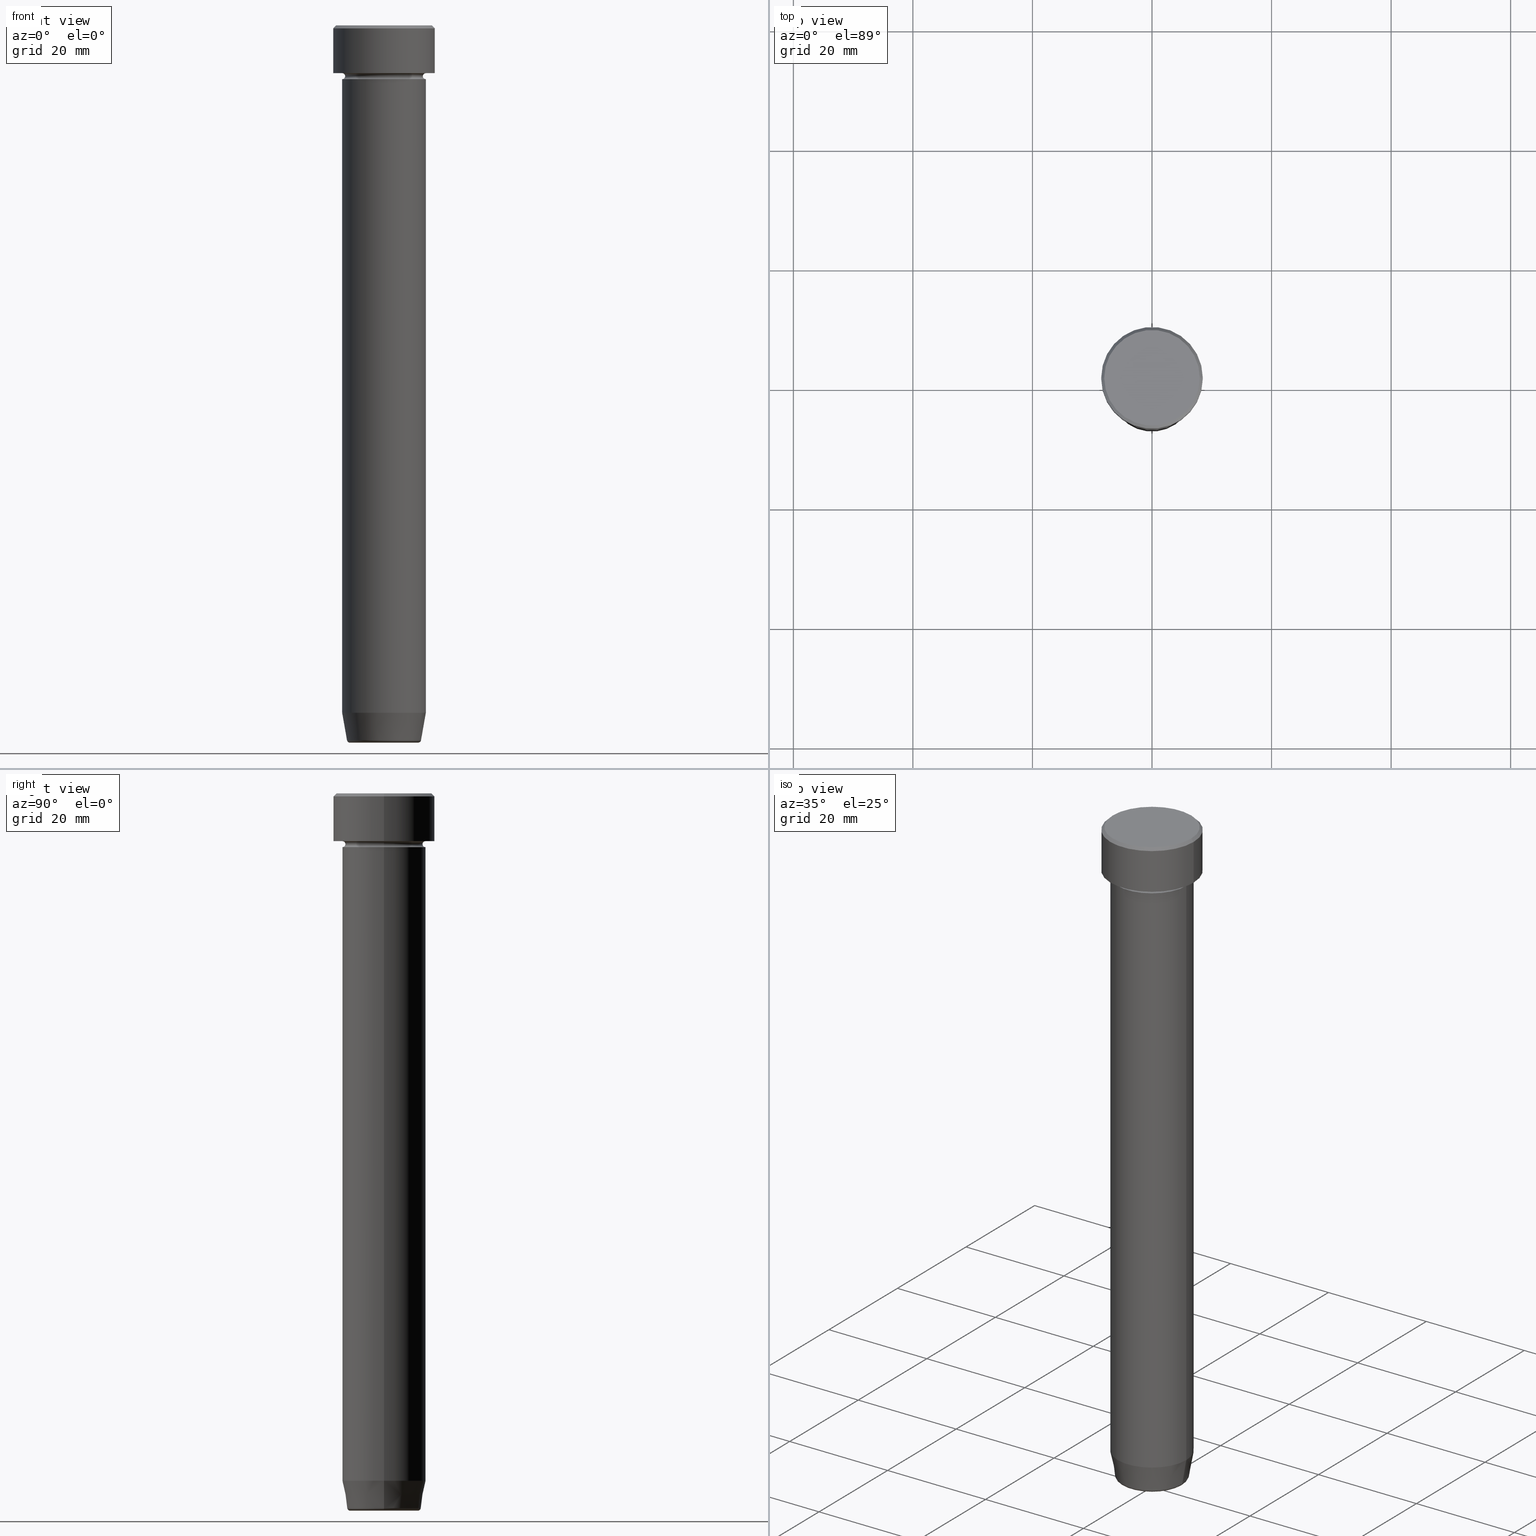
[diagram: canonical four-view strip — front | top / right | iso, engineering-drawing reading convention]
A machine part, canonical four-view strip (front | top / right | iso — engineering-drawing reading convention). The complete STEP part file that produces these views, byte-faithful:
ISO-10303-21;
HEADER;
FILE_DESCRIPTION (( 'STEP AP203' ),
    '1' );
FILE_NAME ('e0a8.STEP',
    '2024-01-02T23:19:42',
    ( '' ),
    ( '' ),
    'SwSTEP 2.0',
    'SolidWorks 2019',
    '' );
FILE_SCHEMA (( 'CONFIG_CONTROL_DESIGN' ));
ENDSEC;

DATA;
#1 = EDGE_LOOP ( 'NONE', ( #250, #313, #214, #512 ) ) ;
#2 = DIRECTION ( 'NONE',  ( -1.000000000000000000, 1.224646799147351482E-16, 0.000000000000000000 ) ) ;
#3 = COORDINATED_UNIVERSAL_TIME_OFFSET ( 1, 0, .AHEAD. ) ;
#4 = CIRCLE ( 'NONE', #506, 8.000000000000000000 ) ;
#5 = LOCAL_TIME ( 0, 19, 42.00000000000000000, #41 ) ;
#6 = DIRECTION ( 'NONE',  ( 1.000000000000000000, 0.000000000000000000, 0.000000000000000000 ) ) ;
#7 = CARTESIAN_POINT ( 'NONE',  ( 0.000000000000000000, 0.000000000000000000, -8.500000000000000000 ) ) ;
#8 = DATE_AND_TIME ( #365, #110 ) ;
#9 = ADVANCED_FACE ( 'NONE', ( #226 ), #55, .T. ) ;
#10 = CARTESIAN_POINT ( 'NONE',  ( -6.999999999999999112, 8.572527594031472204E-16, -22.00000000000000000 ) ) ;
#11 = DIRECTION ( 'NONE',  ( -0.000000000000000000, -0.000000000000000000, 1.000000000000000000 ) ) ;
#12 = DIRECTION ( 'NONE',  ( -0.000000000000000000, -0.000000000000000000, 1.000000000000000000 ) ) ;
#13 = VECTOR ( 'NONE', #573, 1000.000000000000000 ) ;
#14 = CARTESIAN_POINT ( 'NONE',  ( 0.000000000000000000, 0.000000000000000000, 0.000000000000000000 ) ) ;
#15 = CIRCLE ( 'NONE', #481, 7.000000000000000000 ) ;
#16 = CARTESIAN_POINT ( 'NONE',  ( -6.999999999999999112, 8.572527594031472204E-16, -114.9999999999999858 ) ) ;
#17 = LINE ( 'NONE', #379, #99 ) ;
#18 = EDGE_LOOP ( 'NONE', ( #390, #477, #402, #170 ) ) ;
#19 = CARTESIAN_POINT ( 'NONE',  ( 0.000000000000000000, 0.000000000000000000, -120.0000000000000000 ) ) ;
#20 = CARTESIAN_POINT ( 'NONE',  ( 0.000000000000000000, 0.000000000000000000, 0.000000000000000000 ) ) ;
#21 = EDGE_LOOP ( 'NONE', ( #261, #74 ) ) ;
#22 = FACE_OUTER_BOUND ( 'NONE', #80, .T. ) ;
#23 = CARTESIAN_POINT ( 'NONE',  ( 6.999999999999999112, 0.000000000000000000, 0.000000000000000000 ) ) ;
#24 = AXIS2_PLACEMENT_3D ( 'NONE', #7, #228, #415 ) ;
#25 = MANIFOLD_SOLID_BREP ( 'Zkosen�1', #65 ) ;
#26 = ADVANCED_FACE ( 'NONE', ( #323 ), #50, .T. ) ;
#27 = EDGE_LOOP ( 'NONE', ( #532, #504, #547, #595 ) ) ;
#28 = EDGE_CURVE ( 'NONE', #440, #544, #232, .T. ) ;
#29 = DATE_AND_TIME ( #394, #549 ) ;
#30 = CARTESIAN_POINT ( 'NONE',  ( 0.000000000000000000, 0.000000000000000000, -8.500000000000000000 ) ) ;
#31 = ORIENTED_EDGE ( 'NONE', *, *, #89, .T. ) ;
#32 = VECTOR ( 'NONE', #300, 999.9999999999998863 ) ;
#33 = CONICAL_SURFACE ( 'NONE', #391, 6.118365096457675456, 0.1745329251994325315 ) ;
#34 = DIRECTION ( 'NONE',  ( -0.000000000000000000, -0.000000000000000000, 1.000000000000000000 ) ) ;
#35 = VERTEX_POINT ( 'NONE', #280 ) ;
#36 = APPLICATION_PROTOCOL_DEFINITION ( 'international standard', 'config_control_design', 1994, #102 ) ;
#37 = CC_DESIGN_PERSON_AND_ORGANIZATION_ASSIGNMENT ( #374, #221, ( #592 ) ) ;
#38 = PLANE ( 'NONE',  #119 ) ;
#39 = VERTEX_POINT ( 'NONE', #236 ) ;
#40 =( LENGTH_UNIT ( ) NAMED_UNIT ( * ) SI_UNIT ( .MILLI., .METRE. ) );
#41 = COORDINATED_UNIVERSAL_TIME_OFFSET ( 1, 0, .AHEAD. ) ;
#42 = CIRCLE ( 'NONE', #91, 8.500000000000000000 ) ;
#43 = AXIS2_PLACEMENT_3D ( 'NONE', #244, #183, #290 ) ;
#44 = CARTESIAN_POINT ( 'NONE',  ( 0.000000000000000000, 0.000000000000000000, -22.00000000000000000 ) ) ;
#45 = AXIS2_PLACEMENT_3D ( 'NONE', #175, #213, #584 ) ;
#46 = EDGE_CURVE ( 'NONE', #355, #371, #253, .T. ) ;
#47 = EDGE_LOOP ( 'NONE', ( #122, #279, #461, #176 ) ) ;
#48 = CC_DESIGN_PERSON_AND_ORGANIZATION_ASSIGNMENT ( #160, #537, ( #380 ) ) ;
#49 = VERTEX_POINT ( 'NONE', #524 ) ;
#50 = CYLINDRICAL_SURFACE ( 'NONE', #43, 8.500000000000000000 ) ;
#51 = VERTEX_POINT ( 'NONE', #465 ) ;
#52 = CARTESIAN_POINT ( 'NONE',  ( 7.000000000000000888, 0.000000000000000000, -8.500000000000000000 ) ) ;
#53 = VERTEX_POINT ( 'NONE', #142 ) ;
#54 = DIRECTION ( 'NONE',  ( -0.7071067811865487940, 0.000000000000000000, -0.7071067811865463515 ) ) ;
#55 = CONICAL_SURFACE ( 'NONE', #295, 6.118365096457675456, 0.1745329251994325315 ) ;
#56 = LINE ( 'NONE', #479, #243 ) ;
#57 = DIRECTION ( 'NONE',  ( 1.000000000000000000, 0.000000000000000000, 0.000000000000000000 ) ) ;
#58 = CYLINDRICAL_SURFACE ( 'NONE', #582, 6.999999999999999112 ) ;
#59 = CARTESIAN_POINT ( 'NONE',  ( 0.000000000000000000, 0.000000000000000000, 0.000000000000000000 ) ) ;
#60 = DIRECTION ( 'NONE',  ( -0.000000000000000000, -0.000000000000000000, 1.000000000000000000 ) ) ;
#61 = AXIS2_PLACEMENT_3D ( 'NONE', #483, #531, #289 ) ;
#62 = DIRECTION ( 'NONE',  ( 0.000000000000000000, -0.000000000000000000, 1.000000000000000000 ) ) ;
#63 = SECURITY_CLASSIFICATION ( '', '', #270 ) ;
#64 = VERTEX_POINT ( 'NONE', #10 ) ;
#65 = CLOSED_SHELL ( 'NONE', ( #500, #577, #474, #87, #130, #302, #129, #26, #303, #105, #237, #321, #366 ) ) ;
#66 = AXIS2_PLACEMENT_3D ( 'NONE', #312, #358, #496 ) ;
#67 = DIRECTION ( 'NONE',  ( 1.000000000000000000, 0.000000000000000000, 0.000000000000000000 ) ) ;
#68 = CARTESIAN_POINT ( 'NONE',  ( 0.000000000000000000, 0.000000000000000000, -119.5000000000000000 ) ) ;
#69 = VERTEX_POINT ( 'NONE', #331 ) ;
#70 = CARTESIAN_POINT ( 'NONE',  ( 0.000000000000000000, 0.000000000000000000, -114.9999999999999858 ) ) ;
#71 = EDGE_CURVE ( 'NONE', #223, #360, #224, .T. ) ;
#72 = EDGE_CURVE ( 'NONE', #53, #440, #572, .T. ) ;
#73 = CARTESIAN_POINT ( 'NONE',  ( 6.118365096457675456, 0.000000000000000000, -120.0000000000000000 ) ) ;
#74 = ORIENTED_EDGE ( 'NONE', *, *, #71, .F. ) ;
#75 = DIRECTION ( 'NONE',  ( 0.000000000000000000, 0.000000000000000000, -1.000000000000000000 ) ) ;
#76 = CIRCLE ( 'NONE', #137, 6.191219157375140725 ) ;
#77 = ORIENTED_EDGE ( 'NONE', *, *, #491, .T. ) ;
#78 = FACE_OUTER_BOUND ( 'NONE', #21, .T. ) ;
#79 = AXIS2_PLACEMENT_3D ( 'NONE', #378, #81, #269 ) ;
#80 = EDGE_LOOP ( 'NONE', ( #325, #139, #480, #442 ) ) ;
#81 = DIRECTION ( 'NONE',  ( -0.000000000000000000, -0.000000000000000000, 1.000000000000000000 ) ) ;
#82 = COORDINATED_UNIVERSAL_TIME_OFFSET ( 1, 0, .AHEAD. ) ;
#83 = FACE_OUTER_BOUND ( 'NONE', #406, .T. ) ;
#84 = ORIENTED_EDGE ( 'NONE', *, *, #598, .T. ) ;
#85 = CARTESIAN_POINT ( 'NONE',  ( 0.000000000000000000, 0.000000000000000000, -120.0000000000000000 ) ) ;
#86 = APPROVAL_STATUS ( 'not_yet_approved' ) ;
#87 = ADVANCED_FACE ( 'NONE', ( #422 ), #138, .T. ) ;
#88 = FACE_OUTER_BOUND ( 'NONE', #180, .T. ) ;
#89 = EDGE_CURVE ( 'NONE', #35, #396, #56, .T. ) ;
#90 = VERTEX_POINT ( 'NONE', #334 ) ;
#91 = AXIS2_PLACEMENT_3D ( 'NONE', #363, #510, #407 ) ;
#92 = VECTOR ( 'NONE', #305, 1000.000000000000000 ) ;
#93 = ORIENTED_EDGE ( 'NONE', *, *, #150, .T. ) ;
#94 = CARTESIAN_POINT ( 'NONE',  ( 0.000000000000000000, 0.000000000000000000, -8.000000000000000000 ) ) ;
#95 = ORIENTED_EDGE ( 'NONE', *, *, #386, .T. ) ;
#96 = DIRECTION ( 'NONE',  ( 1.000000000000000000, 0.000000000000000000, 0.000000000000000000 ) ) ;
#97 = CARTESIAN_POINT ( 'NONE',  ( 0.000000000000000000, 0.000000000000000000, -119.5868240888334526 ) ) ;
#98 = APPROVAL ( #86, 'NEUR�EN�' ) ;
#99 = VECTOR ( 'NONE', #516, 1000.000000000000000 ) ;
#100 = FACE_OUTER_BOUND ( 'NONE', #311, .T. ) ;
#101 = ORIENTED_EDGE ( 'NONE', *, *, #562, .T. ) ;
#102 = APPLICATION_CONTEXT ( 'configuration controlled 3d designs of mechanical parts and assemblies' ) ;
#103 = CARTESIAN_POINT ( 'NONE',  ( 5.698815280869034439, 0.000000000000000000, -119.5000000000000000 ) ) ;
#104 = EDGE_CURVE ( 'NONE', #268, #371, #17, .T. ) ;
#105 = ADVANCED_FACE ( 'NONE', ( #100 ), #58, .T. ) ;
#106 = EDGE_LOOP ( 'NONE', ( #367, #84 ) ) ;
#107 = DIRECTION ( 'NONE',  ( 1.000000000000000000, 0.000000000000000000, 0.000000000000000000 ) ) ;
#108 = VECTOR ( 'NONE', #403, 1000.000000000000000 ) ;
#109 = DIRECTION ( 'NONE',  ( -0.000000000000000000, -0.000000000000000000, 1.000000000000000000 ) ) ;
#110 = LOCAL_TIME ( 0, 19, 42.00000000000000000, #493 ) ;
#111 = AXIS2_PLACEMENT_3D ( 'NONE', #30, #273, #447 ) ;
#112 = DIRECTION ( 'NONE',  ( 0.000000000000000000, 0.000000000000000000, -1.000000000000000000 ) ) ;
#113 = EDGE_CURVE ( 'NONE', #544, #440, #15, .T. ) ;
#114 = CARTESIAN_POINT ( 'NONE',  ( 0.000000000000000000, 0.000000000000000000, -8.000000000000000000 ) ) ;
#115 = CARTESIAN_POINT ( 'NONE',  ( -6.999999999999999112, 8.572527594031472204E-16, -22.00000000000000000 ) ) ;
#116 = CC_DESIGN_PERSON_AND_ORGANIZATION_ASSIGNMENT ( #278, #177, ( #63 ) ) ;
#117 = CYLINDRICAL_SURFACE ( 'NONE', #557, 8.500000000000000000 ) ;
#118 = EDGE_LOOP ( 'NONE', ( #95, #159 ) ) ;
#119 = AXIS2_PLACEMENT_3D ( 'NONE', #218, #593, #486 ) ;
#120 = LINE ( 'NONE', #485, #92 ) ;
#121 = ORIENTED_EDGE ( 'NONE', *, *, #435, .F. ) ;
#122 = ORIENTED_EDGE ( 'NONE', *, *, #492, .T. ) ;
#123 = AXIS2_PLACEMENT_3D ( 'NONE', #554, #513, #96 ) ;
#124 = CALENDAR_DATE ( 2024, 3, 1 ) ;
#125 = PERSON ( 'NEUR�EN�', 'NEUR�EN�', 'NEUR�EN�', ('NEUR�EN�'), ('NEUR�EN�'), ('NEUR�EN�') ) ;
#126 = DIRECTION ( 'NONE',  ( 1.000000000000000000, 0.000000000000000000, 0.000000000000000000 ) ) ;
#127 = EDGE_LOOP ( 'NONE', ( #404, #416, #579, #131 ) ) ;
#128 = ORIENTED_EDGE ( 'NONE', *, *, #235, .F. ) ;
#129 = ADVANCED_FACE ( 'NONE', ( #522 ), #239, .T. ) ;
#130 = ADVANCED_FACE ( 'NONE', ( #533 ), #117, .T. ) ;
#131 = ORIENTED_EDGE ( 'NONE', *, *, #575, .F. ) ;
#132 = ORIENTED_EDGE ( 'NONE', *, *, #258, .T. ) ;
#133 = DIRECTION ( 'NONE',  ( -1.224646799147353207E-16, 1.000000000000000000, 0.000000000000000000 ) ) ;
#134 = ORIENTED_EDGE ( 'NONE', *, *, #411, .F. ) ;
#135 = AXIS2_PLACEMENT_3D ( 'NONE', #502, #318, #543 ) ;
#136 = APPROVAL_PERSON_ORGANIZATION ( #591, #98, #315 ) ;
#137 = AXIS2_PLACEMENT_3D ( 'NONE', #345, #473, #568 ) ;
#138 = CYLINDRICAL_SURFACE ( 'NONE', #470, 6.999999999999999112 ) ;
#139 = ORIENTED_EDGE ( 'NONE', *, *, #520, .T. ) ;
#140 = FACE_OUTER_BOUND ( 'NONE', #599, .T. ) ;
#141 = APPROVAL_DATE_TIME ( #548, #98 ) ;
#142 = CARTESIAN_POINT ( 'NONE',  ( 6.500000000000000888, 0.000000000000000000, -8.500000000000000000 ) ) ;
#143 = CARTESIAN_POINT ( 'NONE',  ( 0.000000000000000000, 0.000000000000000000, -8.500000000000000000 ) ) ;
#144 = DIRECTION ( 'NONE',  ( 0.000000000000000000, 0.000000000000000000, -1.000000000000000000 ) ) ;
#145 = AXIS2_PLACEMENT_3D ( 'NONE', #94, #590, #174 ) ;
#146 = DIRECTION ( 'NONE',  ( -0.000000000000000000, -0.000000000000000000, 1.000000000000000000 ) ) ;
#147 = CIRCLE ( 'NONE', #489, 0.5000000000000004441 ) ;
#148 = FACE_OUTER_BOUND ( 'NONE', #319, .T. ) ;
#149 = ADVANCED_FACE ( 'NONE', ( #196 ), #375, .T. ) ;
#150 = EDGE_CURVE ( 'NONE', #360, #223, #353, .T. ) ;
#151 = DIRECTION ( 'NONE',  ( 1.000000000000000000, 0.000000000000000000, 0.000000000000000000 ) ) ;
#152 = DIRECTION ( 'NONE',  ( 1.000000000000000000, 0.000000000000000000, 0.000000000000000000 ) ) ;
#153 = CARTESIAN_POINT ( 'NONE',  ( 6.999999999999999112, 0.000000000000000000, -114.9999999999999858 ) ) ;
#154 = CIRCLE ( 'NONE', #482, 8.500000000000000000 ) ;
#155 = LOCAL_TIME ( 0, 19, 42.00000000000000000, #82 ) ;
#156 = EDGE_LOOP ( 'NONE', ( #93, #585, #498, #254 ) ) ;
#157 = DIRECTION ( 'NONE',  ( -0.000000000000000000, -0.000000000000000000, 1.000000000000000000 ) ) ;
#158 = CARTESIAN_POINT ( 'NONE',  ( 0.000000000000000000, 0.000000000000000000, 0.000000000000000000 ) ) ;
#159 = ORIENTED_EDGE ( 'NONE', *, *, #347, .T. ) ;
#160 = PERSON_AND_ORGANIZATION ( #125, #439 ) ;
#161 = DIRECTION ( 'NONE',  ( -0.000000000000000000, -1.000000000000000000, -0.000000000000000000 ) ) ;
#162 = AXIS2_PLACEMENT_3D ( 'NONE', #249, #389, #529 ) ;
#163 = APPROVAL_DATE_TIME ( #29, #429 ) ;
#164 = FACE_BOUND ( 'NONE', #118, .T. ) ;
#165 = ORIENTED_EDGE ( 'NONE', *, *, #427, .T. ) ;
#166 = FACE_OUTER_BOUND ( 'NONE', #469, .T. ) ;
#167 = EDGE_LOOP ( 'NONE', ( #172, #553, #488, #450 ) ) ;
#168 = DIRECTION ( 'NONE',  ( -0.000000000000000000, -0.000000000000000000, 1.000000000000000000 ) ) ;
#169 = EDGE_CURVE ( 'NONE', #223, #544, #120, .T. ) ;
#170 = ORIENTED_EDGE ( 'NONE', *, *, #427, .F. ) ;
#171 = ADVANCED_FACE ( 'NONE', ( #309 ), #257, .T. ) ;
#172 = ORIENTED_EDGE ( 'NONE', *, *, #409, .T. ) ;
#173 = APPROVAL_PERSON_ORGANIZATION ( #317, #459, #505 ) ;
#174 = DIRECTION ( 'NONE',  ( 1.000000000000000000, 0.000000000000000000, 0.000000000000000000 ) ) ;
#175 = CARTESIAN_POINT ( 'NONE',  ( 0.000000000000000000, 6.999999999999999112, -22.00000000000000000 ) ) ;
#176 = ORIENTED_EDGE ( 'NONE', *, *, #452, .F. ) ;
#177 = PERSON_AND_ORGANIZATION_ROLE ( 'classification_officer' ) ;
#178 = DIRECTION ( 'NONE',  ( -0.000000000000000000, -0.000000000000000000, 1.000000000000000000 ) ) ;
#179 = ORIENTED_EDGE ( 'NONE', *, *, #258, .F. ) ;
#180 = EDGE_LOOP ( 'NONE', ( #344, #272, #551, #306 ) ) ;
#181 = CIRCLE ( 'NONE', #66, 7.000000000000000888 ) ;
#182 = AXIS2_PLACEMENT_3D ( 'NONE', #566, #293, #247 ) ;
#183 = DIRECTION ( 'NONE',  ( -0.000000000000000000, -0.000000000000000000, 1.000000000000000000 ) ) ;
#184 = SHAPE_DEFINITION_REPRESENTATION ( #487, #413 ) ;
#185 = ORIENTED_EDGE ( 'NONE', *, *, #207, .T. ) ;
#186 = DIRECTION ( 'NONE',  ( -0.000000000000000000, -0.000000000000000000, 1.000000000000000000 ) ) ;
#187 =( NAMED_UNIT ( * ) SI_UNIT ( $, .STERADIAN. ) SOLID_ANGLE_UNIT ( ) );
#188 = DIRECTION ( 'NONE',  ( 1.000000000000000000, 0.000000000000000000, 0.000000000000000000 ) ) ;
#189 = EDGE_CURVE ( 'NONE', #51, #53, #431, .T. ) ;
#190 = EDGE_CURVE ( 'NONE', #360, #440, #436, .T. ) ;
#191 = DIRECTION ( 'NONE',  ( -1.000000000000000000, 0.000000000000000000, 0.000000000000000000 ) ) ;
#192 = AXIS2_PLACEMENT_3D ( 'NONE', #97, #178, #271 ) ;
#193 = VECTOR ( 'NONE', #54, 1000.000000000000000 ) ;
#194 = CARTESIAN_POINT ( 'NONE',  ( 0.000000000000000000, 0.000000000000000000, -9.000000000000001776 ) ) ;
#195 = AXIS2_PLACEMENT_3D ( 'NONE', #356, #168, #545 ) ;
#196 = FACE_OUTER_BOUND ( 'NONE', #586, .T. ) ;
#197 = CARTESIAN_POINT ( 'NONE',  ( 0.000000000000000000, 0.000000000000000000, -119.5000000000000000 ) ) ;
#198 = CARTESIAN_POINT ( 'NONE',  ( 0.000000000000000000, 0.000000000000000000, -8.500000000000000000 ) ) ;
#199 = ORIENTED_EDGE ( 'NONE', *, *, #169, .F. ) ;
#200 = CARTESIAN_POINT ( 'NONE',  ( 8.500000000000000000, 0.000000000000000000, 0.000000000000000000 ) ) ;
#201 = APPROVAL_PERSON_ORGANIZATION ( #260, #429, #350 ) ;
#202 = CARTESIAN_POINT ( 'NONE',  ( 6.999999999999999112, 0.000000000000000000, -22.00000000000000000 ) ) ;
#203 = APPLICATION_PROTOCOL_DEFINITION ( 'international standard', 'config_control_design', 1994, #216 ) ;
#204 = CARTESIAN_POINT ( 'NONE',  ( -7.000000000000000888, 0.000000000000000000, -8.500000000000000000 ) ) ;
#205 = VERTEX_POINT ( 'NONE', #202 ) ;
#206 = DIRECTION ( 'NONE',  ( -0.000000000000000000, -0.000000000000000000, 1.000000000000000000 ) ) ;
#207 = EDGE_CURVE ( 'NONE', #275, #463, #398, .T. ) ;
#208 = CC_DESIGN_DATE_AND_TIME_ASSIGNMENT ( #8, #357, ( #540 ) ) ;
#209 = CARTESIAN_POINT ( 'NONE',  ( 0.000000000000000000, 0.000000000000000000, -120.0000000000000000 ) ) ;
#210 = CIRCLE ( 'NONE', #192, 6.191219157375140725 ) ;
#211 = VERTEX_POINT ( 'NONE', #392 ) ;
#212 = AXIS2_PLACEMENT_3D ( 'NONE', #197, #385, #57 ) ;
#213 = DIRECTION ( 'NONE',  ( 0.000000000000000000, 0.000000000000000000, -1.000000000000000000 ) ) ;
#214 = ORIENTED_EDGE ( 'NONE', *, *, #575, .T. ) ;
#215 = ORIENTED_EDGE ( 'NONE', *, *, #546, .F. ) ;
#216 = APPLICATION_CONTEXT ( 'configuration controlled 3d designs of mechanical parts and assemblies' ) ;
#217 = EDGE_CURVE ( 'NONE', #463, #205, #578, .T. ) ;
#218 = CARTESIAN_POINT ( 'NONE',  ( 0.000000000000000000, 0.000000000000000000, -22.00000000000000000 ) ) ;
#219 = ORIENTED_EDGE ( 'NONE', *, *, #217, .T. ) ;
#220 = MANIFOLD_SOLID_BREP ( 'Zaoblit4', #484 ) ;
#221 = PERSON_AND_ORGANIZATION_ROLE ( 'creator' ) ;
#222 = PLANE ( 'NONE',  #135 ) ;
#223 = VERTEX_POINT ( 'NONE', #115 ) ;
#224 = CIRCLE ( 'NONE', #497, 6.999999999999999112 ) ;
#225 = VECTOR ( 'NONE', #60, 1000.000000000000000 ) ;
#226 = FACE_OUTER_BOUND ( 'NONE', #437, .T. ) ;
#227 = ORIENTED_EDGE ( 'NONE', *, *, #386, .F. ) ;
#228 = DIRECTION ( 'NONE',  ( 0.000000000000000000, 0.000000000000000000, -1.000000000000000000 ) ) ;
#229 = ORIENTED_EDGE ( 'NONE', *, *, #476, .T. ) ;
#230 = DIRECTION ( 'NONE',  ( 0.000000000000000000, -1.000000000000000000, 0.000000000000000000 ) ) ;
#231 = AXIS2_PLACEMENT_3D ( 'NONE', #194, #12, #6 ) ;
#232 = CIRCLE ( 'NONE', #231, 7.000000000000000000 ) ;
#233 = DIRECTION ( 'NONE',  ( -0.1736481776669299704, 2.126576849575766676E-17, 0.9848077530122082424 ) ) ;
#234 = DIRECTION ( 'NONE',  ( 1.000000000000000000, 0.000000000000000000, 0.000000000000000000 ) ) ;
#235 = EDGE_CURVE ( 'NONE', #51, #69, #508, .T. ) ;
#236 = CARTESIAN_POINT ( 'NONE',  ( -5.698815280869034439, 7.280546308273763704E-16, -120.0000000000000000 ) ) ;
#237 = ADVANCED_FACE ( 'NONE', ( #88 ), #307, .F. ) ;
#238 = DIRECTION ( 'NONE',  ( -0.000000000000000000, -0.000000000000000000, 1.000000000000000000 ) ) ;
#239 = PLANE ( 'NONE',  #328 ) ;
#240 = CARTESIAN_POINT ( 'NONE',  ( 0.000000000000000000, 0.000000000000000000, 0.000000000000000000 ) ) ;
#241 = AXIS2_PLACEMENT_3D ( 'NONE', #198, #299, #567 ) ;
#242 = AXIS2_PLACEMENT_3D ( 'NONE', #576, #255, #2 ) ;
#243 = VECTOR ( 'NONE', #233, 999.9999999999998863 ) ;
#244 = CARTESIAN_POINT ( 'NONE',  ( 0.000000000000000000, 0.000000000000000000, 0.000000000000000000 ) ) ;
#245 = AXIS2_PLACEMENT_3D ( 'NONE', #204, #161, #352 ) ;
#246 = ORIENTED_EDGE ( 'NONE', *, *, #561, .T. ) ;
#247 = DIRECTION ( 'NONE',  ( -1.000000000000000000, 1.224646799147351482E-16, 0.000000000000000000 ) ) ;
#248 = DIRECTION ( 'NONE',  ( -0.000000000000000000, -0.000000000000000000, 1.000000000000000000 ) ) ;
#249 = CARTESIAN_POINT ( 'NONE',  ( 0.000000000000000000, 0.000000000000000000, -22.00000000000000000 ) ) ;
#250 = ORIENTED_EDGE ( 'NONE', *, *, #259, .F. ) ;
#251 = DIRECTION ( 'NONE',  ( 1.000000000000000000, 0.000000000000000000, 0.000000000000000000 ) ) ;
#252 = CIRCLE ( 'NONE', #581, 0.5000000000000004441 ) ;
#253 = CIRCLE ( 'NONE', #343, 8.500000000000000000 ) ;
#254 = ORIENTED_EDGE ( 'NONE', *, *, #190, .F. ) ;
#255 = DIRECTION ( 'NONE',  ( 1.224646799147353207E-16, 1.000000000000000000, 0.000000000000000000 ) ) ;
#256 = MECHANICAL_CONTEXT ( 'NONE', #102, 'mechanical' ) ;
#257 = CYLINDRICAL_SURFACE ( 'NONE', #370, 6.999999999999999112 ) ;
#258 = EDGE_CURVE ( 'NONE', #64, #205, #324, .T. ) ;
#259 = EDGE_CURVE ( 'NONE', #49, #355, #316, .T. ) ;
#260 = PERSON_AND_ORGANIZATION ( #125, #439 ) ;
#261 = ORIENTED_EDGE ( 'NONE', *, *, #150, .F. ) ;
#262 = PRODUCT_RELATED_PRODUCT_CATEGORY ( 'detail', '', ( #380 ) ) ;
#263 = AXIS2_PLACEMENT_3D ( 'NONE', #114, #340, #571 ) ;
#264 = DIRECTION ( 'NONE',  ( -0.000000000000000000, -0.000000000000000000, 1.000000000000000000 ) ) ;
#265 = CC_DESIGN_APPROVAL ( #459, ( #592 ) ) ;
#266 = CARTESIAN_POINT ( 'NONE',  ( 0.000000000000000000, 0.000000000000000000, 0.000000000000000000 ) ) ;
#267 = DIRECTION ( 'NONE',  ( 0.000000000000000000, 0.000000000000000000, -1.000000000000000000 ) ) ;
#268 = VERTEX_POINT ( 'NONE', #515 ) ;
#269 = DIRECTION ( 'NONE',  ( 1.000000000000000000, 0.000000000000000000, 0.000000000000000000 ) ) ;
#270 = SECURITY_CLASSIFICATION_LEVEL ( 'unclassified' ) ;
#271 = DIRECTION ( 'NONE',  ( -1.000000000000000000, 0.000000000000000000, 0.000000000000000000 ) ) ;
#272 = ORIENTED_EDGE ( 'NONE', *, *, #596, .F. ) ;
#273 = DIRECTION ( 'NONE',  ( -0.000000000000000000, -0.000000000000000000, 1.000000000000000000 ) ) ;
#274 = CIRCLE ( 'NONE', #351, 5.698815280869034439 ) ;
#275 = VERTEX_POINT ( 'NONE', #587 ) ;
#276 = AXIS2_PLACEMENT_3D ( 'NONE', #421, #361, #368 ) ;
#277 = CARTESIAN_POINT ( 'NONE',  ( 7.000000000000000888, 8.572527594031474176E-16, -8.500000000000000000 ) ) ;
#278 = PERSON_AND_ORGANIZATION ( #125, #439 ) ;
#279 = ORIENTED_EDGE ( 'NONE', *, *, #104, .T. ) ;
#280 = CARTESIAN_POINT ( 'NONE',  ( -6.191219157375140725, 8.077292158965355434E-16, -119.5868240888334526 ) ) ;
#281 = DIRECTION ( 'NONE',  ( -1.000000000000000000, -1.224646799147351482E-16, 0.000000000000000000 ) ) ;
#282 = ORIENTED_EDGE ( 'NONE', *, *, #190, .T. ) ;
#283 = CIRCLE ( 'NONE', #359, 5.698815280869034439 ) ;
#284 = DIRECTION ( 'NONE',  ( -1.000000000000000000, 0.000000000000000000, 0.000000000000000000 ) ) ;
#285 = EDGE_CURVE ( 'NONE', #275, #35, #210, .T. ) ;
#286 = EDGE_CURVE ( 'NONE', #39, #90, #274, .T. ) ;
#287 = DIRECTION ( 'NONE',  ( 1.000000000000000000, 0.000000000000000000, 0.000000000000000000 ) ) ;
#288 = ORIENTED_EDGE ( 'NONE', *, *, #347, .F. ) ;
#289 = DIRECTION ( 'NONE',  ( 1.000000000000000000, 0.000000000000000000, 0.000000000000000000 ) ) ;
#290 = DIRECTION ( 'NONE',  ( 1.000000000000000000, 0.000000000000000000, 0.000000000000000000 ) ) ;
#291 = CARTESIAN_POINT ( 'NONE',  ( 0.000000000000000000, 0.000000000000000000, 0.000000000000000000 ) ) ;
#292 = DIRECTION ( 'NONE',  ( -0.000000000000000000, -0.000000000000000000, 1.000000000000000000 ) ) ;
#293 = DIRECTION ( 'NONE',  ( 1.224646799147353207E-16, 1.000000000000000000, 0.000000000000000000 ) ) ;
#294 = CIRCLE ( 'NONE', #182, 0.5000000000000004441 ) ;
#295 = AXIS2_PLACEMENT_3D ( 'NONE', #503, #264, #414 ) ;
#296 = DIRECTION ( 'NONE',  ( 1.000000000000000000, 0.000000000000000000, 0.000000000000000000 ) ) ;
#297 = AXIS2_PLACEMENT_3D ( 'NONE', #44, #34, #126 ) ;
#298 = CARTESIAN_POINT ( 'NONE',  ( 8.500000000000000000, 0.000000000000000000, -0.4999999999999987232 ) ) ;
#299 = DIRECTION ( 'NONE',  ( -0.000000000000000000, -0.000000000000000000, 1.000000000000000000 ) ) ;
#300 = DIRECTION ( 'NONE',  ( 0.1736481776669299704, 0.000000000000000000, 0.9848077530122082424 ) ) ;
#301 = ORIENTED_EDGE ( 'NONE', *, *, #285, .F. ) ;
#302 = ADVANCED_FACE ( 'NONE', ( #78 ), #552, .T. ) ;
#303 = ADVANCED_FACE ( 'NONE', ( #164, #83 ), #222, .T. ) ;
#304 = LOCAL_TIME ( 0, 19, 42.00000000000000000, #3 ) ;
#305 = DIRECTION ( 'NONE',  ( -0.000000000000000000, -0.000000000000000000, 1.000000000000000000 ) ) ;
#306 = ORIENTED_EDGE ( 'NONE', *, *, #28, .T. ) ;
#307 = TOROIDAL_SURFACE ( 'NONE', #111, 7.000000000000000888, 0.5000000000000000000 ) ;
#308 = COORDINATED_UNIVERSAL_TIME_OFFSET ( 1, 0, .AHEAD. ) ;
#309 = FACE_OUTER_BOUND ( 'NONE', #433, .T. ) ;
#310 = PERSON_AND_ORGANIZATION_ROLE ( 'creator' ) ;
#311 = EDGE_LOOP ( 'NONE', ( #199, #509, #282, #490 ) ) ;
#312 = CARTESIAN_POINT ( 'NONE',  ( 0.000000000000000000, 0.000000000000000000, -8.000000000000000000 ) ) ;
#313 = ORIENTED_EDGE ( 'NONE', *, *, #387, .F. ) ;
#314 = FACE_OUTER_BOUND ( 'NONE', #588, .T. ) ;
#315 = APPROVAL_ROLE ( '' ) ;
#316 = LINE ( 'NONE', #594, #108 ) ;
#317 = PERSON_AND_ORGANIZATION ( #125, #439 ) ;
#318 = DIRECTION ( 'NONE',  ( 0.000000000000000000, 0.000000000000000000, -1.000000000000000000 ) ) ;
#319 = EDGE_LOOP ( 'NONE', ( #77, #550 ) ) ;
#320 = LINE ( 'NONE', #466, #193 ) ;
#321 = ADVANCED_FACE ( 'NONE', ( #166 ), #428, .F. ) ;
#322 = CC_DESIGN_PERSON_AND_ORGANIZATION_ASSIGNMENT ( #542, #310, ( #540 ) ) ;
#323 = FACE_OUTER_BOUND ( 'NONE', #27, .T. ) ;
#324 = CIRCLE ( 'NONE', #297, 6.999999999999999112 ) ;
#325 = ORIENTED_EDGE ( 'NONE', *, *, #189, .F. ) ;
#326 = DIRECTION ( 'NONE',  ( -0.000000000000000000, -0.000000000000000000, 1.000000000000000000 ) ) ;
#327 = DATE_AND_TIME ( #124, #155 ) ;
#328 = AXIS2_PLACEMENT_3D ( 'NONE', #14, #62, #349 ) ;
#329 = ORIENTED_EDGE ( 'NONE', *, *, #235, .T. ) ;
#330 = CARTESIAN_POINT ( 'NONE',  ( -8.000000000000000000, 0.000000000000000000, 0.000000000000000000 ) ) ;
#331 = CARTESIAN_POINT ( 'NONE',  ( -7.000000000000000888, 0.000000000000000000, -8.000000000000000000 ) ) ;
#332 = ADVANCED_FACE ( 'NONE', ( #333 ), #583, .T. ) ;
#333 = FACE_OUTER_BOUND ( 'NONE', #167, .T. ) ;
#334 = CARTESIAN_POINT ( 'NONE',  ( 5.698815280869034439, 0.000000000000000000, -120.0000000000000000 ) ) ;
#335 = CC_DESIGN_SECURITY_CLASSIFICATION ( #63, ( #592 ) ) ;
#336 = FACE_OUTER_BOUND ( 'NONE', #18, .T. ) ;
#337 = DIRECTION ( 'NONE',  ( 1.000000000000000000, 0.000000000000000000, 0.000000000000000000 ) ) ;
#338 = LINE ( 'NONE', #339, #410 ) ;
#339 = CARTESIAN_POINT ( 'NONE',  ( -6.999999999999999112, 8.572527594031472204E-16, 0.000000000000000000 ) ) ;
#340 = DIRECTION ( 'NONE',  ( -0.000000000000000000, -0.000000000000000000, 1.000000000000000000 ) ) ;
#341 = CIRCLE ( 'NONE', #419, 6.999999999999999112 ) ;
#342 = CC_DESIGN_APPROVAL ( #98, ( #63 ) ) ;
#343 = AXIS2_PLACEMENT_3D ( 'NONE', #560, #377, #337 ) ;
#344 = ORIENTED_EDGE ( 'NONE', *, *, #520, .F. ) ;
#345 = CARTESIAN_POINT ( 'NONE',  ( 0.000000000000000000, 0.000000000000000000, -119.5868240888334526 ) ) ;
#346 = ORIENTED_EDGE ( 'NONE', *, *, #286, .F. ) ;
#347 = EDGE_CURVE ( 'NONE', #574, #69, #181, .T. ) ;
#348 = ADVANCED_FACE ( 'NONE', ( #453 ), #38, .F. ) ;
#349 = DIRECTION ( 'NONE',  ( 1.000000000000000000, 0.000000000000000000, 0.000000000000000000 ) ) ;
#350 = APPROVAL_ROLE ( '' ) ;
#351 = AXIS2_PLACEMENT_3D ( 'NONE', #209, #405, #494 ) ;
#352 = DIRECTION ( 'NONE',  ( 0.000000000000000000, 0.000000000000000000, -1.000000000000000000 ) ) ;
#353 = CIRCLE ( 'NONE', #162, 6.999999999999999112 ) ;
#354 = CARTESIAN_POINT ( 'NONE',  ( 0.000000000000000000, 0.000000000000000000, 0.000000000000000000 ) ) ;
#355 = VERTEX_POINT ( 'NONE', #298 ) ;
#356 = CARTESIAN_POINT ( 'NONE',  ( 0.000000000000000000, 0.000000000000000000, 0.000000000000000000 ) ) ;
#357 = DATE_TIME_ROLE ( 'creation_date' ) ;
#358 = DIRECTION ( 'NONE',  ( -0.000000000000000000, -0.000000000000000000, 1.000000000000000000 ) ) ;
#359 = AXIS2_PLACEMENT_3D ( 'NONE', #19, #112, #234 ) ;
#360 = VERTEX_POINT ( 'NONE', #426 ) ;
#361 = DIRECTION ( 'NONE',  ( -0.000000000000000000, -0.000000000000000000, 1.000000000000000000 ) ) ;
#362 = ORIENTED_EDGE ( 'NONE', *, *, #562, .F. ) ;
#363 = CARTESIAN_POINT ( 'NONE',  ( 0.000000000000000000, 0.000000000000000000, -0.4999999999999987232 ) ) ;
#364 = EDGE_CURVE ( 'NONE', #396, #463, #460, .T. ) ;
#365 = CALENDAR_DATE ( 2024, 3, 1 ) ;
#366 = ADVANCED_FACE ( 'NONE', ( #388 ), #580, .T. ) ;
#367 = ORIENTED_EDGE ( 'NONE', *, *, #387, .T. ) ;
#368 = DIRECTION ( 'NONE',  ( 1.000000000000000000, 0.000000000000000000, 0.000000000000000000 ) ) ;
#369 = CC_DESIGN_DATE_AND_TIME_ASSIGNMENT ( #467, #559, ( #63 ) ) ;
#370 = AXIS2_PLACEMENT_3D ( 'NONE', #20, #441, #443 ) ;
#371 = VERTEX_POINT ( 'NONE', #563 ) ;
#372 = CIRCLE ( 'NONE', #123, 6.999999999999999112 ) ;
#373 = DIRECTION ( 'NONE',  ( 1.000000000000000000, 0.000000000000000000, 0.000000000000000000 ) ) ;
#374 = PERSON_AND_ORGANIZATION ( #125, #439 ) ;
#375 = TOROIDAL_SURFACE ( 'NONE', #555, 5.698815280869034439, 0.5000000000000000000 ) ;
#376 = UNCERTAINTY_MEASURE_WITH_UNIT (LENGTH_MEASURE( 1.000000000000000082E-05 ), #40, 'distance_accuracy_value', 'NONE');
#377 = DIRECTION ( 'NONE',  ( 0.000000000000000000, 0.000000000000000000, -1.000000000000000000 ) ) ;
#378 = CARTESIAN_POINT ( 'NONE',  ( 0.000000000000000000, 0.000000000000000000, 0.000000000000000000 ) ) ;
#379 = CARTESIAN_POINT ( 'NONE',  ( -8.500000000000000000, 1.040949779275250140E-15, 0.000000000000000000 ) ) ;
#380 = PRODUCT ( 'e0a8', 'e0a8', '', ( #256 ) ) ;
#381 = DIRECTION ( 'NONE',  ( 0.000000000000000000, 0.000000000000000000, -1.000000000000000000 ) ) ;
#382 = DIRECTION ( 'NONE',  ( 0.000000000000000000, 0.000000000000000000, -1.000000000000000000 ) ) ;
#383 = DIRECTION ( 'NONE',  ( -0.000000000000000000, -0.000000000000000000, 1.000000000000000000 ) ) ;
#384 = VECTOR ( 'NONE', #109, 1000.000000000000000 ) ;
#385 = DIRECTION ( 'NONE',  ( -0.000000000000000000, -0.000000000000000000, 1.000000000000000000 ) ) ;
#386 = EDGE_CURVE ( 'NONE', #69, #574, #526, .T. ) ;
#387 = EDGE_CURVE ( 'NONE', #534, #49, #4, .T. ) ;
#388 = FACE_OUTER_BOUND ( 'NONE', #1, .T. ) ;
#389 = DIRECTION ( 'NONE',  ( -0.000000000000000000, -0.000000000000000000, 1.000000000000000000 ) ) ;
#390 = ORIENTED_EDGE ( 'NONE', *, *, #476, .F. ) ;
#391 = AXIS2_PLACEMENT_3D ( 'NONE', #85, #326, #373 ) ;
#392 = CARTESIAN_POINT ( 'NONE',  ( 8.500000000000000000, 0.000000000000000000, -8.000000000000000000 ) ) ;
#393 = ADVANCED_FACE ( 'NONE', ( #148 ), #434, .F. ) ;
#394 = CALENDAR_DATE ( 2024, 3, 1 ) ;
#395 = DIRECTION ( 'NONE',  ( -0.000000000000000000, -0.000000000000000000, 1.000000000000000000 ) ) ;
#396 = VERTEX_POINT ( 'NONE', #16 ) ;
#397 = APPROVAL_STATUS ( 'not_yet_approved' ) ;
#398 = LINE ( 'NONE', #73, #32 ) ;
#399 = ORIENTED_EDGE ( 'NONE', *, *, #207, .F. ) ;
#400 = AXIS2_PLACEMENT_3D ( 'NONE', #291, #381, #191 ) ;
#401 = TOROIDAL_SURFACE ( 'NONE', #24, 7.000000000000000888, 0.5000000000000000000 ) ;
#402 = ORIENTED_EDGE ( 'NONE', *, *, #435, .T. ) ;
#403 = DIRECTION ( 'NONE',  ( 0.7071067811865487940, 8.659560562354950115E-17, -0.7071067811865463515 ) ) ;
#404 = ORIENTED_EDGE ( 'NONE', *, *, #598, .F. ) ;
#405 = DIRECTION ( 'NONE',  ( 0.000000000000000000, 0.000000000000000000, -1.000000000000000000 ) ) ;
#406 = EDGE_LOOP ( 'NONE', ( #412, #215 ) ) ;
#407 = DIRECTION ( 'NONE',  ( 1.000000000000000000, 0.000000000000000000, 0.000000000000000000 ) ) ;
#408 = CIRCLE ( 'NONE', #242, 0.5000000000000004441 ) ;
#409 = EDGE_CURVE ( 'NONE', #463, #396, #341, .T. ) ;
#410 = VECTOR ( 'NONE', #523, 1000.000000000000000 ) ;
#411 = EDGE_CURVE ( 'NONE', #396, #64, #338, .T. ) ;
#412 = ORIENTED_EDGE ( 'NONE', *, *, #492, .F. ) ;
#413 = ADVANCED_BREP_SHAPE_REPRESENTATION ( 'e0a8', ( #25, #220, #468 ), #517 ) ;
#414 = DIRECTION ( 'NONE',  ( 1.000000000000000000, 0.000000000000000000, 0.000000000000000000 ) ) ;
#415 = DIRECTION ( 'NONE',  ( -1.000000000000000000, 0.000000000000000000, 0.000000000000000000 ) ) ;
#416 = ORIENTED_EDGE ( 'NONE', *, *, #259, .T. ) ;
#417 = PERSON_AND_ORGANIZATION_ROLE ( 'design_supplier' ) ;
#418 = CARTESIAN_POINT ( 'NONE',  ( 0.000000000000000000, 0.000000000000000000, 0.000000000000000000 ) ) ;
#419 = AXIS2_PLACEMENT_3D ( 'NONE', #471, #248, #107 ) ;
#420 = CC_DESIGN_APPROVAL ( #429, ( #540 ) ) ;
#421 = CARTESIAN_POINT ( 'NONE',  ( 0.000000000000000000, 0.000000000000000000, -8.500000000000000000 ) ) ;
#422 = FACE_OUTER_BOUND ( 'NONE', #156, .T. ) ;
#423 =( NAMED_UNIT ( * ) PLANE_ANGLE_UNIT ( ) SI_UNIT ( $, .RADIAN. ) );
#424 = CARTESIAN_POINT ( 'NONE',  ( 0.000000000000000000, 0.000000000000000000, -8.000000000000000000 ) ) ;
#425 = DIRECTION ( 'NONE',  ( 1.000000000000000000, 0.000000000000000000, 0.000000000000000000 ) ) ;
#426 = CARTESIAN_POINT ( 'NONE',  ( 6.999999999999999112, 0.000000000000000000, -22.00000000000000000 ) ) ;
#427 = EDGE_CURVE ( 'NONE', #35, #275, #76, .T. ) ;
#428 = TOROIDAL_SURFACE ( 'NONE', #445, 7.000000000000000888, 0.5000000000000000000 ) ;
#429 = APPROVAL ( #397, 'NEUR�EN�' ) ;
#430 = DIRECTION ( 'NONE',  ( 1.000000000000000000, 0.000000000000000000, 0.000000000000000000 ) ) ;
#431 = CIRCLE ( 'NONE', #241, 6.500000000000000888 ) ;
#432 = DIRECTION ( 'NONE',  ( 0.000000000000000000, -1.000000000000000000, 0.000000000000000000 ) ) ;
#433 = EDGE_LOOP ( 'NONE', ( #134, #518, #219, #179 ) ) ;
#434 = PLANE ( 'NONE',  #61 ) ;
#435 = EDGE_CURVE ( 'NONE', #90, #275, #147, .T. ) ;
#436 = LINE ( 'NONE', #23, #384 ) ;
#437 = EDGE_LOOP ( 'NONE', ( #589, #31, #558, #399 ) ) ;
#438 = DIRECTION ( 'NONE',  ( -1.000000000000000000, 0.000000000000000000, 0.000000000000000000 ) ) ;
#439 = ORGANIZATION ( 'NEUR�EN�', 'NEUR�EN�', '' ) ;
#440 = VERTEX_POINT ( 'NONE', #525 ) ;
#441 = DIRECTION ( 'NONE',  ( -0.000000000000000000, -0.000000000000000000, 1.000000000000000000 ) ) ;
#442 = ORIENTED_EDGE ( 'NONE', *, *, #72, .F. ) ;
#443 = DIRECTION ( 'NONE',  ( 1.000000000000000000, 0.000000000000000000, 0.000000000000000000 ) ) ;
#444 = CC_DESIGN_PERSON_AND_ORGANIZATION_ASSIGNMENT ( #597, #417, ( #592 ) ) ;
#445 = AXIS2_PLACEMENT_3D ( 'NONE', #143, #267, #284 ) ;
#446 = AXIS2_PLACEMENT_3D ( 'NONE', #354, #75, #438 ) ;
#447 = DIRECTION ( 'NONE',  ( 1.000000000000000000, 0.000000000000000000, 0.000000000000000000 ) ) ;
#448 = ORIENTED_EDGE ( 'NONE', *, *, #89, .F. ) ;
#449 = DIRECTION ( 'NONE',  ( 0.000000000000000000, 0.000000000000000000, 1.000000000000000000 ) ) ;
#450 = ORIENTED_EDGE ( 'NONE', *, *, #217, .F. ) ;
#451 = CALENDAR_DATE ( 2024, 3, 1 ) ;
#452 = EDGE_CURVE ( 'NONE', #211, #355, #478, .T. ) ;
#453 = FACE_OUTER_BOUND ( 'NONE', #570, .T. ) ;
#454 = ADVANCED_FACE ( 'NONE', ( #336 ), #507, .T. ) ;
#455 = CARTESIAN_POINT ( 'NONE',  ( -7.000000000000000888, 8.572527594031474176E-16, -9.000000000000001776 ) ) ;
#456 = APPROVAL_DATE_TIME ( #327, #459 ) ;
#457 = CIRCLE ( 'NONE', #145, 8.500000000000000000 ) ;
#458 = ORIENTED_EDGE ( 'NONE', *, *, #596, .T. ) ;
#459 = APPROVAL ( #462, 'NEUR�EN�' ) ;
#460 = CIRCLE ( 'NONE', #539, 6.999999999999999112 ) ;
#461 = ORIENTED_EDGE ( 'NONE', *, *, #536, .T. ) ;
#462 = APPROVAL_STATUS ( 'not_yet_approved' ) ;
#463 = VERTEX_POINT ( 'NONE', #153 ) ;
#464 = ORIENTED_EDGE ( 'NONE', *, *, #364, .F. ) ;
#465 = CARTESIAN_POINT ( 'NONE',  ( -6.500000000000000888, 8.266365894244635319E-16, -8.500000000000000000 ) ) ;
#466 = CARTESIAN_POINT ( 'NONE',  ( -8.000000000000000000, 0.000000000000000000, 0.000000000000000000 ) ) ;
#467 = DATE_AND_TIME ( #451, #304 ) ;
#468 = AXIS2_PLACEMENT_3D ( 'NONE', #266, #449, #251 ) ;
#469 = EDGE_LOOP ( 'NONE', ( #362, #458, #329, #288 ) ) ;
#470 = AXIS2_PLACEMENT_3D ( 'NONE', #418, #292, #514 ) ;
#471 = CARTESIAN_POINT ( 'NONE',  ( 0.000000000000000000, 0.000000000000000000, -114.9999999999999858 ) ) ;
#472 = DESIGN_CONTEXT ( 'detailed design', #216, 'design' ) ;
#473 = DIRECTION ( 'NONE',  ( -0.000000000000000000, -0.000000000000000000, 1.000000000000000000 ) ) ;
#474 = ADVANCED_FACE ( 'NONE', ( #22 ), #495, .F. ) ;
#475 = CARTESIAN_POINT ( 'NONE',  ( 0.000000000000000000, 0.000000000000000000, -22.00000000000000000 ) ) ;
#476 = EDGE_CURVE ( 'NONE', #39, #35, #294, .T. ) ;
#477 = ORIENTED_EDGE ( 'NONE', *, *, #491, .F. ) ;
#478 = LINE ( 'NONE', #200, #225 ) ;
#479 = CARTESIAN_POINT ( 'NONE',  ( -6.118365096457675456, 7.492836231391779581E-16, -120.0000000000000000 ) ) ;
#480 = ORIENTED_EDGE ( 'NONE', *, *, #113, .T. ) ;
#481 = AXIS2_PLACEMENT_3D ( 'NONE', #564, #146, #151 ) ;
#482 = AXIS2_PLACEMENT_3D ( 'NONE', #424, #11, #188 ) ;
#483 = CARTESIAN_POINT ( 'NONE',  ( 0.000000000000000000, 8.572527594031472993E-15, -120.0000000000000000 ) ) ;
#484 = CLOSED_SHELL ( 'NONE', ( #149, #9, #332, #348, #171, #521, #393, #454 ) ) ;
#485 = CARTESIAN_POINT ( 'NONE',  ( -6.999999999999999112, 8.572527594031472204E-16, 0.000000000000000000 ) ) ;
#486 = DIRECTION ( 'NONE',  ( -1.000000000000000000, 0.000000000000000000, -0.000000000000000000 ) ) ;
#487 = PRODUCT_DEFINITION_SHAPE ( 'NONE', 'NONE',  #540 ) ;
#488 = ORIENTED_EDGE ( 'NONE', *, *, #561, .F. ) ;
#489 = AXIS2_PLACEMENT_3D ( 'NONE', #103, #432, #144 ) ;
#490 = ORIENTED_EDGE ( 'NONE', *, *, #113, .F. ) ;
#491 = EDGE_CURVE ( 'NONE', #90, #39, #283, .T. ) ;
#492 = EDGE_CURVE ( 'NONE', #211, #268, #154, .T. ) ;
#493 = COORDINATED_UNIVERSAL_TIME_OFFSET ( 1, 0, .AHEAD. ) ;
#494 = DIRECTION ( 'NONE',  ( 1.000000000000000000, 0.000000000000000000, 0.000000000000000000 ) ) ;
#495 = TOROIDAL_SURFACE ( 'NONE', #556, 7.000000000000000888, 0.5000000000000000000 ) ;
#496 = DIRECTION ( 'NONE',  ( -1.000000000000000000, 0.000000000000000000, 0.000000000000000000 ) ) ;
#497 = AXIS2_PLACEMENT_3D ( 'NONE', #475, #186, #287 ) ;
#498 = ORIENTED_EDGE ( 'NONE', *, *, #28, .F. ) ;
#499 = CARTESIAN_POINT ( 'NONE',  ( 7.000000000000000888, 8.572527594031474176E-16, -8.000000000000000000 ) ) ;
#500 = ADVANCED_FACE ( 'NONE', ( #519 ), #535, .T. ) ;
#501 = CALENDAR_DATE ( 2024, 3, 1 ) ;
#502 = CARTESIAN_POINT ( 'NONE',  ( 0.000000000000000000, 8.500000000000000000, -8.000000000000000000 ) ) ;
#503 = CARTESIAN_POINT ( 'NONE',  ( 0.000000000000000000, 0.000000000000000000, -120.0000000000000000 ) ) ;
#504 = ORIENTED_EDGE ( 'NONE', *, *, #546, .T. ) ;
#505 = APPROVAL_ROLE ( '' ) ;
#506 = AXIS2_PLACEMENT_3D ( 'NONE', #240, #383, #430 ) ;
#507 = TOROIDAL_SURFACE ( 'NONE', #212, 5.698815280869034439, 0.5000000000000000000 ) ;
#508 = CIRCLE ( 'NONE', #245, 0.5000000000000004441 ) ;
#509 = ORIENTED_EDGE ( 'NONE', *, *, #71, .T. ) ;
#510 = DIRECTION ( 'NONE',  ( 0.000000000000000000, 0.000000000000000000, -1.000000000000000000 ) ) ;
#511 = DIRECTION ( 'NONE',  ( -0.000000000000000000, -0.000000000000000000, 1.000000000000000000 ) ) ;
#512 = ORIENTED_EDGE ( 'NONE', *, *, #46, .F. ) ;
#513 = DIRECTION ( 'NONE',  ( -0.000000000000000000, -0.000000000000000000, 1.000000000000000000 ) ) ;
#514 = DIRECTION ( 'NONE',  ( 1.000000000000000000, 0.000000000000000000, 0.000000000000000000 ) ) ;
#515 = CARTESIAN_POINT ( 'NONE',  ( -8.500000000000000000, 1.040949779275250140E-15, -8.000000000000000000 ) ) ;
#516 = DIRECTION ( 'NONE',  ( -0.000000000000000000, -0.000000000000000000, 1.000000000000000000 ) ) ;
#517 =( GEOMETRIC_REPRESENTATION_CONTEXT ( 3 ) GLOBAL_UNCERTAINTY_ASSIGNED_CONTEXT ( ( #376 ) ) GLOBAL_UNIT_ASSIGNED_CONTEXT ( ( #40, #423, #187 ) ) REPRESENTATION_CONTEXT ( 'NONE', 'WORKASPACE' ) );
#518 = ORIENTED_EDGE ( 'NONE', *, *, #364, .T. ) ;
#519 = FACE_OUTER_BOUND ( 'NONE', #127, .T. ) ;
#520 = EDGE_CURVE ( 'NONE', #51, #544, #408, .T. ) ;
#521 = ADVANCED_FACE ( 'NONE', ( #140 ), #33, .T. ) ;
#522 = FACE_OUTER_BOUND ( 'NONE', #106, .T. ) ;
#523 = DIRECTION ( 'NONE',  ( -0.000000000000000000, -0.000000000000000000, 1.000000000000000000 ) ) ;
#524 = CARTESIAN_POINT ( 'NONE',  ( 8.000000000000000000, 1.010333609296566550E-15, 0.000000000000000000 ) ) ;
#525 = CARTESIAN_POINT ( 'NONE',  ( 7.000000000000000000, 0.000000000000000000, -9.000000000000001776 ) ) ;
#526 = CIRCLE ( 'NONE', #263, 7.000000000000000888 ) ;
#527 = CIRCLE ( 'NONE', #276, 6.500000000000000888 ) ;
#528 = CARTESIAN_POINT ( 'NONE',  ( 0.000000000000000000, 0.000000000000000000, -8.500000000000000000 ) ) ;
#529 = DIRECTION ( 'NONE',  ( 1.000000000000000000, 0.000000000000000000, 0.000000000000000000 ) ) ;
#530 = ORIENTED_EDGE ( 'NONE', *, *, #189, .T. ) ;
#531 = DIRECTION ( 'NONE',  ( 0.000000000000000000, -0.000000000000000000, 1.000000000000000000 ) ) ;
#532 = ORIENTED_EDGE ( 'NONE', *, *, #104, .F. ) ;
#533 = FACE_OUTER_BOUND ( 'NONE', #47, .T. ) ;
#534 = VERTEX_POINT ( 'NONE', #330 ) ;
#535 = CONICAL_SURFACE ( 'NONE', #446, 8.000000000000000000, 0.7853981633974500554 ) ;
#536 = EDGE_CURVE ( 'NONE', #371, #355, #42, .T. ) ;
#537 = PERSON_AND_ORGANIZATION_ROLE ( 'design_owner' ) ;
#538 = AXIS2_PLACEMENT_3D ( 'NONE', #52, #230, #382 ) ;
#539 = AXIS2_PLACEMENT_3D ( 'NONE', #70, #238, #67 ) ;
#540 = PRODUCT_DEFINITION ( 'NEZN�M�', '', #592, #472 ) ;
#541 = CARTESIAN_POINT ( 'NONE',  ( 6.999999999999999112, 0.000000000000000000, 0.000000000000000000 ) ) ;
#542 = PERSON_AND_ORGANIZATION ( #125, #439 ) ;
#543 = DIRECTION ( 'NONE',  ( -1.000000000000000000, 0.000000000000000000, -0.000000000000000000 ) ) ;
#544 = VERTEX_POINT ( 'NONE', #455 ) ;
#545 = DIRECTION ( 'NONE',  ( 1.000000000000000000, 0.000000000000000000, 0.000000000000000000 ) ) ;
#546 = EDGE_CURVE ( 'NONE', #268, #211, #457, .T. ) ;
#547 = ORIENTED_EDGE ( 'NONE', *, *, #452, .T. ) ;
#548 = DATE_AND_TIME ( #501, #5 ) ;
#549 = LOCAL_TIME ( 0, 19, 42.00000000000000000, #308 ) ;
#550 = ORIENTED_EDGE ( 'NONE', *, *, #286, .T. ) ;
#551 = ORIENTED_EDGE ( 'NONE', *, *, #72, .T. ) ;
#552 = PLANE ( 'NONE',  #45 ) ;
#553 = ORIENTED_EDGE ( 'NONE', *, *, #411, .T. ) ;
#554 = CARTESIAN_POINT ( 'NONE',  ( 0.000000000000000000, 0.000000000000000000, -22.00000000000000000 ) ) ;
#555 = AXIS2_PLACEMENT_3D ( 'NONE', #68, #206, #569 ) ;
#556 = AXIS2_PLACEMENT_3D ( 'NONE', #528, #157, #152 ) ;
#557 = AXIS2_PLACEMENT_3D ( 'NONE', #158, #395, #296 ) ;
#558 = ORIENTED_EDGE ( 'NONE', *, *, #409, .F. ) ;
#559 = DATE_TIME_ROLE ( 'classification_date' ) ;
#560 = CARTESIAN_POINT ( 'NONE',  ( 0.000000000000000000, 0.000000000000000000, -0.4999999999999987232 ) ) ;
#561 = EDGE_CURVE ( 'NONE', #205, #64, #372, .T. ) ;
#562 = EDGE_CURVE ( 'NONE', #53, #574, #252, .T. ) ;
#563 = CARTESIAN_POINT ( 'NONE',  ( -8.500000000000000000, 1.040949779275250140E-15, -0.4999999999999987232 ) ) ;
#564 = CARTESIAN_POINT ( 'NONE',  ( 0.000000000000000000, 0.000000000000000000, -9.000000000000001776 ) ) ;
#565 = CIRCLE ( 'NONE', #79, 8.000000000000000000 ) ;
#566 = CARTESIAN_POINT ( 'NONE',  ( -5.698815280869034439, 6.979035892648287758E-16, -119.5000000000000000 ) ) ;
#567 = DIRECTION ( 'NONE',  ( 1.000000000000000000, 0.000000000000000000, 0.000000000000000000 ) ) ;
#568 = DIRECTION ( 'NONE',  ( -1.000000000000000000, 0.000000000000000000, 0.000000000000000000 ) ) ;
#569 = DIRECTION ( 'NONE',  ( 1.000000000000000000, 0.000000000000000000, 0.000000000000000000 ) ) ;
#570 = EDGE_LOOP ( 'NONE', ( #246, #132 ) ) ;
#571 = DIRECTION ( 'NONE',  ( -1.000000000000000000, 0.000000000000000000, 0.000000000000000000 ) ) ;
#572 = CIRCLE ( 'NONE', #538, 0.5000000000000004441 ) ;
#573 = DIRECTION ( 'NONE',  ( -0.000000000000000000, -0.000000000000000000, 1.000000000000000000 ) ) ;
#574 = VERTEX_POINT ( 'NONE', #499 ) ;
#575 = EDGE_CURVE ( 'NONE', #534, #371, #320, .T. ) ;
#576 = CARTESIAN_POINT ( 'NONE',  ( -7.000000000000000888, 8.572527594031474176E-16, -8.500000000000000000 ) ) ;
#577 = ADVANCED_FACE ( 'NONE', ( #314 ), #401, .F. ) ;
#578 = LINE ( 'NONE', #541, #13 ) ;
#579 = ORIENTED_EDGE ( 'NONE', *, *, #536, .F. ) ;
#580 = CONICAL_SURFACE ( 'NONE', #400, 8.000000000000000000, 0.7853981633974500554 ) ;
#581 = AXIS2_PLACEMENT_3D ( 'NONE', #277, #133, #281 ) ;
#582 = AXIS2_PLACEMENT_3D ( 'NONE', #59, #511, #425 ) ;
#583 = CYLINDRICAL_SURFACE ( 'NONE', #195, 6.999999999999999112 ) ;
#584 = DIRECTION ( 'NONE',  ( -1.000000000000000000, 0.000000000000000000, -0.000000000000000000 ) ) ;
#585 = ORIENTED_EDGE ( 'NONE', *, *, #169, .T. ) ;
#586 = EDGE_LOOP ( 'NONE', ( #346, #229, #301, #121 ) ) ;
#587 = CARTESIAN_POINT ( 'NONE',  ( 6.191219157375140725, 0.000000000000000000, -119.5868240888334526 ) ) ;
#588 = EDGE_LOOP ( 'NONE', ( #530, #101, #227, #128 ) ) ;
#589 = ORIENTED_EDGE ( 'NONE', *, *, #285, .T. ) ;
#590 = DIRECTION ( 'NONE',  ( -0.000000000000000000, -0.000000000000000000, 1.000000000000000000 ) ) ;
#591 = PERSON_AND_ORGANIZATION ( #125, #439 ) ;
#592 = PRODUCT_DEFINITION_FORMATION_WITH_SPECIFIED_SOURCE ( 'LIBOVOLN�', '', #380, .NOT_KNOWN. ) ;
#593 = DIRECTION ( 'NONE',  ( 0.000000000000000000, 0.000000000000000000, -1.000000000000000000 ) ) ;
#594 = CARTESIAN_POINT ( 'NONE',  ( 8.000000000000000000, 9.797174393178825657E-16, 0.000000000000000000 ) ) ;
#595 = ORIENTED_EDGE ( 'NONE', *, *, #46, .T. ) ;
#596 = EDGE_CURVE ( 'NONE', #53, #51, #527, .T. ) ;
#597 = PERSON_AND_ORGANIZATION ( #125, #439 ) ;
#598 = EDGE_CURVE ( 'NONE', #49, #534, #565, .T. ) ;
#599 = EDGE_LOOP ( 'NONE', ( #448, #165, #185, #464 ) ) ;
ENDSEC;
END-ISO-10303-21;
